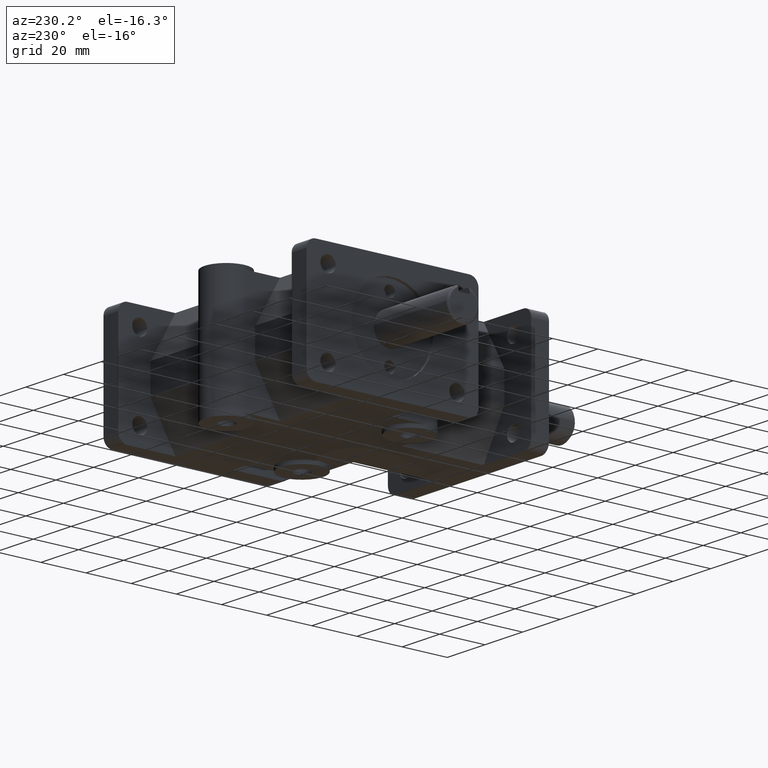
[diagram: clean part render]
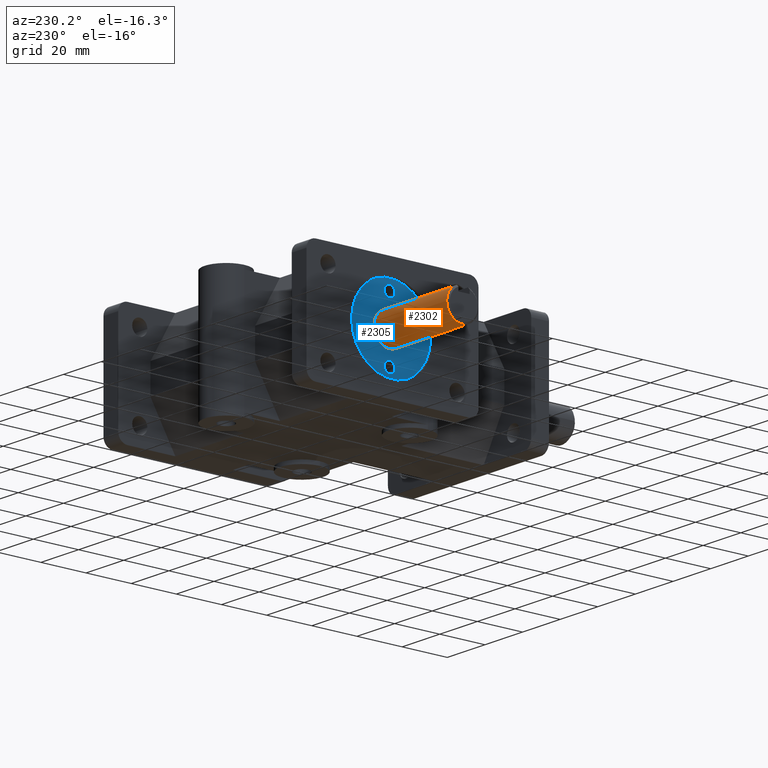
[diagram: same view with the hole feature highlighted: cylindrical wall and planar end face, labeled with their STEP entity ids]
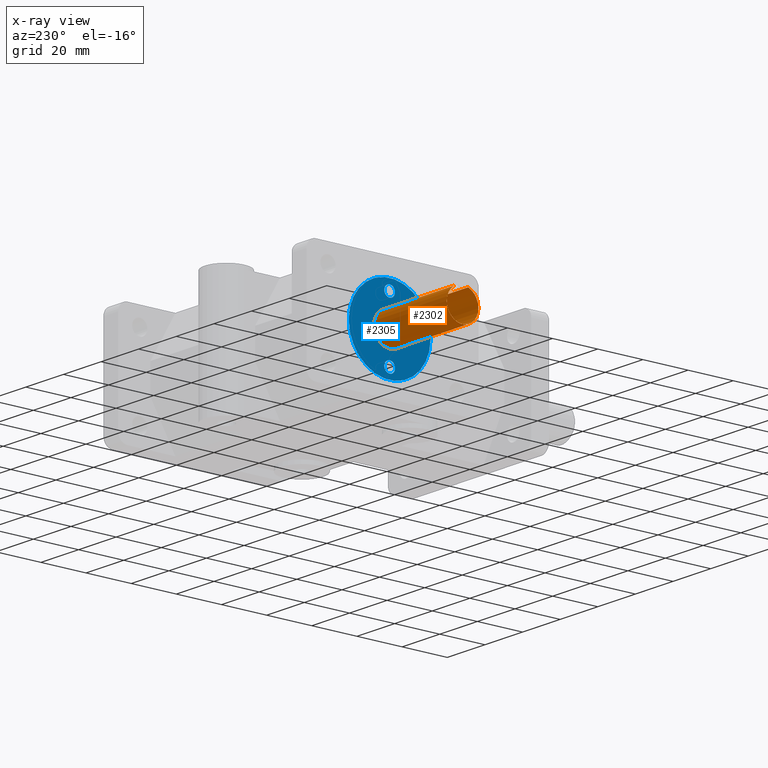
[diagram: x-ray of the same camera — body ghosted, the hole faces saturated]
A machine part, auxiliary view. The highlighted faces form one hole feature of diameter 14 mm: the cylindrical wall (entity #2302, orange) and its adjacent planar end face (entity #2305, blue) — they share a circular edge in the B-rep.
The next image is the same camera in x-ray (body ghosted, the hole faces saturated) — the bore reads through the body.
Wall:
#183=FACE_OUTER_BOUND('',#312,.T.);
#312=EDGE_LOOP('',(#1687,#1688,#1689,#1690,#1691,#1692,#1693,#1694));
#483=LINE('',#3487,#705);
#487=LINE('',#3500,#709);
#493=LINE('',#3519,#715);
#705=VECTOR('',#2796,1.);
#709=VECTOR('',#2802,1.);
#715=VECTOR('',#2818,7.);
#924=CIRCLE('',#2473,7.);
#925=CIRCLE('',#2475,7.);
#926=CIRCLE('',#2476,7.);
#927=CIRCLE('',#2477,7.);
#1044=VERTEX_POINT('',#3485);
#1045=VERTEX_POINT('',#3486);
#1049=VERTEX_POINT('',#3498);
#1050=VERTEX_POINT('',#3499);
#1054=VERTEX_POINT('',#3516);
#1055=VERTEX_POINT('',#3518);
#1286=EDGE_CURVE('',#1044,#1045,#483,.T.);
#1291=EDGE_CURVE('',#1049,#1050,#487,.T.);
#1298=EDGE_CURVE('',#1050,#1044,#924,.T.);
#1299=EDGE_CURVE('',#1054,#1045,#925,.T.);
#1300=EDGE_CURVE('',#1054,#1055,#493,.T.);
#1301=EDGE_CURVE('',#1055,#1055,#926,.T.);
#1302=EDGE_CURVE('',#1049,#1054,#927,.T.);
#1687=ORIENTED_EDGE('',*,*,#1286,.T.);
#1688=ORIENTED_EDGE('',*,*,#1299,.F.);
#1689=ORIENTED_EDGE('',*,*,#1300,.T.);
#1690=ORIENTED_EDGE('',*,*,#1301,.F.);
#1691=ORIENTED_EDGE('',*,*,#1300,.F.);
#1692=ORIENTED_EDGE('',*,*,#1302,.F.);
#1693=ORIENTED_EDGE('',*,*,#1291,.T.);
#1694=ORIENTED_EDGE('',*,*,#1298,.T.);
#2236=CYLINDRICAL_SURFACE('',#2474,7.);
#2302=ADVANCED_FACE('',(#183),#2236,.T.);
#2473=AXIS2_PLACEMENT_3D('',#3514,#2812,#2813);
#2474=AXIS2_PLACEMENT_3D('',#3515,#2814,#2815);
#2475=AXIS2_PLACEMENT_3D('',#3517,#2816,#2817);
#2476=AXIS2_PLACEMENT_3D('',#3520,#2819,#2820);
#2477=AXIS2_PLACEMENT_3D('',#3521,#2821,#2822);
#2796=DIRECTION('',(-1.,0.,0.));
#2802=DIRECTION('',(1.,0.,0.));
#2812=DIRECTION('center_axis',(1.,0.,0.));
#2813=DIRECTION('ref_axis',(0.,-1.,0.));
#2814=DIRECTION('center_axis',(-1.,0.,0.));
#2815=DIRECTION('ref_axis',(0.,-1.,0.));
#2816=DIRECTION('center_axis',(-1.,0.,0.));
#2817=DIRECTION('ref_axis',(0.,1.,0.));
#2818=DIRECTION('',(1.,0.,0.));
#2819=DIRECTION('center_axis',(1.,0.,0.));
#2820=DIRECTION('ref_axis',(0.,-1.,0.));
#2821=DIRECTION('center_axis',(-1.,0.,0.));
#2822=DIRECTION('ref_axis',(0.,1.,0.));
#3485=CARTESIAN_POINT('',(-66.575,80.05,6.53834841531101));
#3486=CARTESIAN_POINT('',(-91.213,80.05,6.53834841531101));
#3487=CARTESIAN_POINT('',(-72.213,80.05,6.53834841531101));
#3498=CARTESIAN_POINT('',(-91.213,85.05,6.53834841531101));
#3499=CARTESIAN_POINT('',(-66.575,85.05,6.53834841531101));
#3500=CARTESIAN_POINT('',(-72.213,85.05,6.53834841531101));
#3514=CARTESIAN_POINT('Origin',(-66.575,82.55,0.));
#3515=CARTESIAN_POINT('Origin',(-72.213,82.55,0.));
#3516=CARTESIAN_POINT('',(-91.213,89.55,-8.57252759403147E-16));
#3517=CARTESIAN_POINT('Origin',(-91.213,82.55,0.));
#3518=CARTESIAN_POINT('',(-52.451,89.55,-8.57252759403147E-16));
#3519=CARTESIAN_POINT('',(-72.213,89.55,-8.57252759403147E-16));
#3520=CARTESIAN_POINT('Origin',(-52.451,82.55,0.));
#3521=CARTESIAN_POINT('Origin',(-91.213,82.55,0.));
End face:
#15=FACE_BOUND('',#316,.T.);
#16=FACE_BOUND('',#317,.T.);
#17=FACE_BOUND('',#318,.T.);
#90=PLANE('',#2481);
#186=FACE_OUTER_BOUND('',#315,.T.);
#315=EDGE_LOOP('',(#1704));
#316=EDGE_LOOP('',(#1705));
#317=EDGE_LOOP('',(#1706));
#318=EDGE_LOOP('',(#1707));
#900=CIRCLE('',#2421,2.3749);
#902=CIRCLE('',#2425,2.3749);
#909=CIRCLE('',#2438,18.1356);
#926=CIRCLE('',#2476,7.);
#1006=VERTEX_POINT('',#3357);
#1008=VERTEX_POINT('',#3364);
#1015=VERTEX_POINT('',#3387);
#1055=VERTEX_POINT('',#3518);
#1229=EDGE_CURVE('',#1006,#1006,#900,.T.);
#1232=EDGE_CURVE('',#1008,#1008,#902,.T.);
#1243=EDGE_CURVE('',#1015,#1015,#909,.T.);
#1301=EDGE_CURVE('',#1055,#1055,#926,.T.);
#1704=ORIENTED_EDGE('',*,*,#1243,.T.);
#1705=ORIENTED_EDGE('',*,*,#1301,.T.);
#1706=ORIENTED_EDGE('',*,*,#1229,.T.);
#1707=ORIENTED_EDGE('',*,*,#1232,.T.);
#2305=ADVANCED_FACE('',(#186,#15,#16,#17),#90,.F.);
#2421=AXIS2_PLACEMENT_3D('',#3358,#2669,#2670);
#2425=AXIS2_PLACEMENT_3D('',#3365,#2678,#2679);
#2438=AXIS2_PLACEMENT_3D('',#3389,#2708,#2709);
#2476=AXIS2_PLACEMENT_3D('',#3520,#2819,#2820);
#2481=AXIS2_PLACEMENT_3D('',#3525,#2829,#2830);
#2669=DIRECTION('center_axis',(1.,0.,0.));
#2670=DIRECTION('ref_axis',(0.,1.,0.));
#2678=DIRECTION('center_axis',(1.,0.,0.));
#2679=DIRECTION('ref_axis',(0.,1.,0.));
#2708=DIRECTION('center_axis',(-1.,0.,0.));
#2709=DIRECTION('ref_axis',(0.,-1.,0.));
#2819=DIRECTION('center_axis',(1.,0.,0.));
#2820=DIRECTION('ref_axis',(0.,-1.,0.));
#2829=DIRECTION('center_axis',(1.,0.,0.));
#2830=DIRECTION('ref_axis',(0.,-1.,0.));
#3357=CARTESIAN_POINT('',(-52.451,80.1751,13.462));
#3358=CARTESIAN_POINT('Origin',(-52.451,82.55,13.462));
#3364=CARTESIAN_POINT('',(-52.451,80.1751,-13.462));
#3365=CARTESIAN_POINT('Origin',(-52.451,82.55,-13.462));
#3387=CARTESIAN_POINT('',(-52.451,100.6856,2.22097044906167E-15));
#3389=CARTESIAN_POINT('Origin',(-52.451,82.55,0.));
#3518=CARTESIAN_POINT('',(-52.451,89.55,-8.57252759403147E-16));
#3520=CARTESIAN_POINT('Origin',(-52.451,82.55,0.));
#3525=CARTESIAN_POINT('Origin',(-52.451,83.9239090909091,-2.08319265799052E-16));